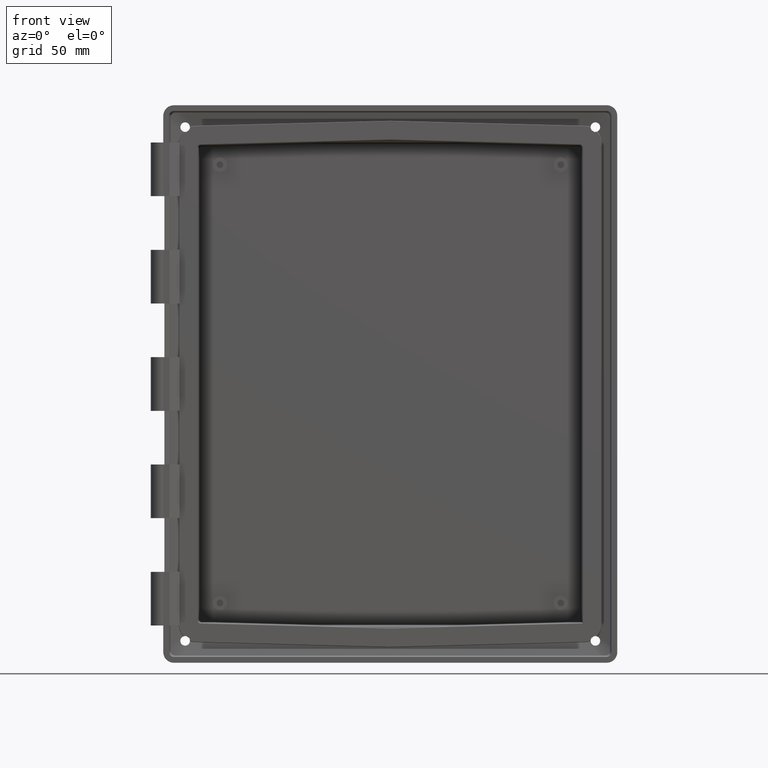
[diagram: clean part render]
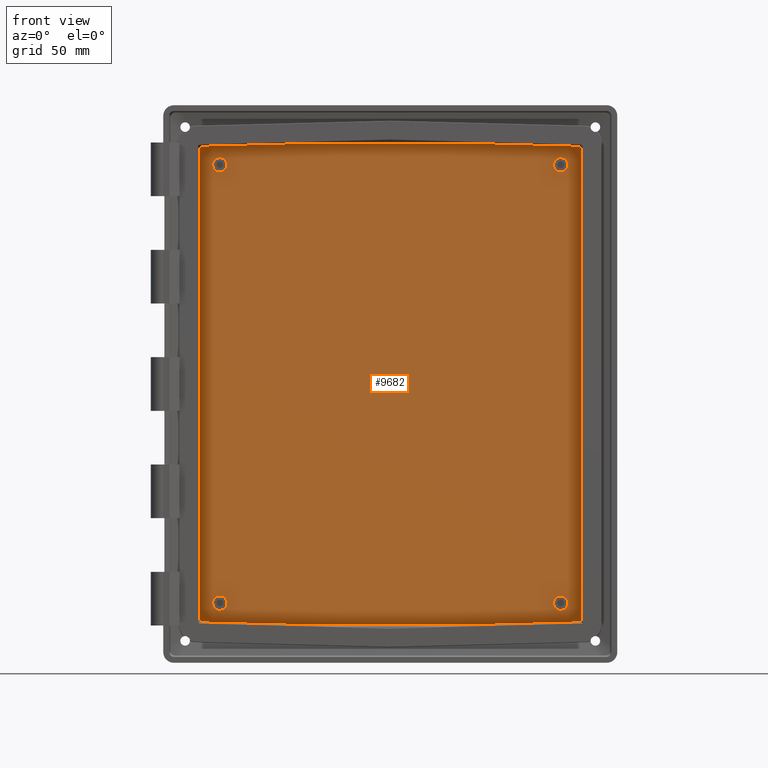
[diagram: same view with one face highlighted and labeled with its STEP entity id]
A machine part, front view. The second image highlights one B-rep face of the part: STEP entity #9682.
In plain terms, the highlighted planar face has unit normal (0, 1, 0).
Its self-contained STEP definition (entity closure, byte-faithful):
#358 = ORIENTED_EDGE ( 'NONE', *, *, #359, .T. ) ;
#359 = EDGE_CURVE ( 'NONE', #385, #360, #3571, .T. ) ;
#360 = VERTEX_POINT ( 'NONE', #3567 ) ;
#361 = ORIENTED_EDGE ( 'NONE', *, *, #362, .T. ) ;
#362 = EDGE_CURVE ( 'NONE', #360, #363, #3566, .T. ) ;
#363 = VERTEX_POINT ( 'NONE', #3562 ) ;
#364 = ORIENTED_EDGE ( 'NONE', *, *, #365, .T. ) ;
#365 = EDGE_CURVE ( 'NONE', #363, #391, #3624, .T. ) ;
#366 = EDGE_LOOP ( 'NONE', ( #367, #369 ) ) ;
#367 = ORIENTED_EDGE ( 'NONE', *, *, #368, .F. ) ;
#368 = EDGE_CURVE ( 'NONE', #9699, #495, #3619, .T. ) ;
#369 = ORIENTED_EDGE ( 'NONE', *, *, #497, .F. ) ;
#370 = EDGE_LOOP ( 'NONE', ( #428, #430 ) ) ;
#371 = EDGE_CURVE ( 'NONE', #398, #372, #3614, .T. ) ;
#372 = VERTEX_POINT ( 'NONE', #3610 ) ;
#373 = ORIENTED_EDGE ( 'NONE', *, *, #374, .T. ) ;
#374 = EDGE_CURVE ( 'NONE', #372, #375, #3609, .T. ) ;
#375 = VERTEX_POINT ( 'NONE', #3605 ) ;
#376 = ORIENTED_EDGE ( 'NONE', *, *, #377, .F. ) ;
#377 = EDGE_CURVE ( 'NONE', #378, #375, #3641, .T. ) ;
#378 = VERTEX_POINT ( 'NONE', #3604 ) ;
#379 = ORIENTED_EDGE ( 'NONE', *, *, #380, .T. ) ;
#380 = EDGE_CURVE ( 'NONE', #378, #381, #3603, .T. ) ;
#381 = VERTEX_POINT ( 'NONE', #3633 ) ;
#382 = ORIENTED_EDGE ( 'NONE', *, *, #383, .T. ) ;
#383 = EDGE_CURVE ( 'NONE', #381, #384, #3631, .T. ) ;
#384 = VERTEX_POINT ( 'NONE', #3630 ) ;
#385 = VERTEX_POINT ( 'NONE', #3632 ) ;
#386 = EDGE_CURVE ( 'NONE', #9710, #9705, #3662, .T. ) ;
#387 = ORIENTED_EDGE ( 'NONE', *, *, #9706, .F. ) ;
#388 = EDGE_LOOP ( 'NONE', ( #389, #393, #396, #399, #373, #376, #379, #382, #441, #358, #361, #364 ) ) ;
#389 = ORIENTED_EDGE ( 'NONE', *, *, #390, .T. ) ;
#390 = EDGE_CURVE ( 'NONE', #391, #392, #3663, .T. ) ;
#391 = VERTEX_POINT ( 'NONE', #3654 ) ;
#392 = VERTEX_POINT ( 'NONE', #3653 ) ;
#393 = ORIENTED_EDGE ( 'NONE', *, *, #394, .T. ) ;
#394 = EDGE_CURVE ( 'NONE', #392, #395, #3650, .T. ) ;
#395 = VERTEX_POINT ( 'NONE', #3652 ) ;
#396 = ORIENTED_EDGE ( 'NONE', *, *, #397, .T. ) ;
#397 = EDGE_CURVE ( 'NONE', #395, #398, #3651, .T. ) ;
#398 = VERTEX_POINT ( 'NONE', #3642 ) ;
#399 = ORIENTED_EDGE ( 'NONE', *, *, #371, .T. ) ;
#428 = ORIENTED_EDGE ( 'NONE', *, *, #429, .F. ) ;
#429 = EDGE_CURVE ( 'NONE', #501, #528, #3798, .T. ) ;
#430 = ORIENTED_EDGE ( 'NONE', *, *, #500, .F. ) ;
#441 = ORIENTED_EDGE ( 'NONE', *, *, #442, .T. ) ;
#442 = EDGE_CURVE ( 'NONE', #384, #385, #3951, .T. ) ;
#495 = VERTEX_POINT ( 'NONE', #4022 ) ;
#497 = EDGE_CURVE ( 'NONE', #495, #9699, #4075, .T. ) ;
#500 = EDGE_CURVE ( 'NONE', #528, #501, #4067, .T. ) ;
#501 = VERTEX_POINT ( 'NONE', #4062 ) ;
#528 = VERTEX_POINT ( 'NONE', #4139 ) ;
#529 = VERTEX_POINT ( 'NONE', #4138 ) ;
#531 = EDGE_CURVE ( 'NONE', #529, #532, #4137, .T. ) ;
#532 = VERTEX_POINT ( 'NONE', #4132 ) ;
#3562 = CARTESIAN_POINT ( 'NONE',  ( -98.03662246108612500, 30.60000000000000100, 123.9972671691286900 ) ) ;
#3563 = DIRECTION ( 'NONE',  ( -0.9996573249755572600, -0.0000000000000000000, -0.02617694830787319800 ) ) ;
#3564 = VECTOR ( 'NONE', #3563, 1000.000000000000100 ) ;
#3565 = CARTESIAN_POINT ( 'NONE',  ( -100.5370706981924700, 30.60000000000000100, 123.9317906277040200 ) ) ;
#3566 = LINE ( 'NONE', #3565, #3564 ) ;
#3567 = CARTESIAN_POINT ( 'NONE',  ( -40.96821627691110700, 30.60000000000000100, 125.4916559775460000 ) ) ;
#3568 = DIRECTION ( 'NONE',  ( -1.000000000000000000, -0.0000000000000000000, -0.0000000000000000000 ) ) ;
#3569 = VECTOR ( 'NONE', #3568, 1000.000000000000000 ) ;
#3570 = CARTESIAN_POINT ( 'NONE',  ( -104.5000000000000100, 30.60000000000000100, 125.4916559775460000 ) ) ;
#3571 = LINE ( 'NONE', #3570, #3569 ) ;
#3603 = LINE ( 'NONE', #3636, #3635 ) ;
#3604 = CARTESIAN_POINT ( 'NONE',  ( 99.49165597754603100, 30.60000000000000100, -123.3945339545613800 ) ) ;
#3605 = CARTESIAN_POINT ( 'NONE',  ( 99.41380563708224800, 30.60000000000000100, -123.9612043584956500 ) ) ;
#3606 = DIRECTION ( 'NONE',  ( 0.9996573249755572600, -0.0000000000000000000, 0.02617694830787319400 ) ) ;
#3607 = VECTOR ( 'NONE', #3606, 1000.000000000000100 ) ;
#3608 = CARTESIAN_POINT ( 'NONE',  ( -0.02797204684241310800, 30.60000000000000100, -126.5651789496274400 ) ) ;
#3609 = LINE ( 'NONE', #3608, #3607 ) ;
#3610 = CARTESIAN_POINT ( 'NONE',  ( 40.96821627691107900, 30.60000000000000100, -125.4916559775459200 ) ) ;
#3611 = DIRECTION ( 'NONE',  ( 1.000000000000000000, -0.0000000000000000000, -0.0000000000000000000 ) ) ;
#3612 = VECTOR ( 'NONE', #3611, 1000.000000000000000 ) ;
#3613 = CARTESIAN_POINT ( 'NONE',  ( -104.5000000000000100, 30.60000000000000100, -125.4916559775459200 ) ) ;
#3614 = LINE ( 'NONE', #3613, #3612 ) ;
#3615 = DIRECTION ( 'NONE',  ( 0.0000000000000000000, 0.0000000000000000000, 1.000000000000000000 ) ) ;
#3616 = DIRECTION ( 'NONE',  ( -0.0000000000000000000, -1.000000000000000000, -0.0000000000000000000 ) ) ;
#3617 = CARTESIAN_POINT ( 'NONE',  ( 88.89999999999996300, 30.60000000000000100, -114.3000000000000000 ) ) ;
#3618 = AXIS2_PLACEMENT_3D ( 'NONE', #3617, #3616, #3615 ) ;
#3619 = CIRCLE ( 'NONE', #3618, 3.750000000000003600 ) ;
#3620 = CARTESIAN_POINT ( 'NONE',  ( -99.49165597754601700, 30.60000000000000100, 122.6187655489183000 ) ) ;
#3621 = CARTESIAN_POINT ( 'NONE',  ( -99.42716768543260700, 30.60000000000000500, 123.4221343239195100 ) ) ;
#3622 = CARTESIAN_POINT ( 'NONE',  ( -98.84237529300413900, 30.60000000000000500, 123.9761677886679200 ) ) ;
#3623 = CARTESIAN_POINT ( 'NONE',  ( -98.03662246108612500, 30.60000000000000100, 123.9972671691286900 ) ) ;
#3624 =( BOUNDED_CURVE ( )  B_SPLINE_CURVE ( 3, ( #3623, #3622, #3621, #3620 ),
 .UNSPECIFIED., .F., .T. ) 
 B_SPLINE_CURVE_WITH_KNOTS ( ( 4, 4 ),
 ( 5.511470371821744200, 6.974809783478868000 ),
 .UNSPECIFIED. ) 
 CURVE ( )  GEOMETRIC_REPRESENTATION_ITEM ( )  RATIONAL_B_SPLINE_CURVE ( ( 1.000000000000000000, 0.8293732586690909500, 0.8293732586690909500, 1.000000000000000000 ) ) 
 REPRESENTATION_ITEM ( '' )  );
#3625 = CARTESIAN_POINT ( 'NONE',  ( 98.03662246108611100, 30.60000000000000100, 123.9972671691286900 ) ) ;
#3626 = CARTESIAN_POINT ( 'NONE',  ( 98.84237529300436600, 30.60000000000000100, 123.9761677886679400 ) ) ;
#3627 = CARTESIAN_POINT ( 'NONE',  ( 99.42716768543292000, 30.60000000000000100, 123.4221343239192400 ) ) ;
#3628 = CARTESIAN_POINT ( 'NONE',  ( 99.49165597754606000, 30.60000000000000100, 122.6187655489178100 ) ) ;
#3630 = CARTESIAN_POINT ( 'NONE',  ( 98.03662246108611100, 30.60000000000000100, 123.9972671691286900 ) ) ;
#3631 =( BOUNDED_CURVE ( )  B_SPLINE_CURVE ( 3, ( #3628, #3627, #3626, #3625 ),
 .UNSPECIFIED., .F., .T. ) 
 B_SPLINE_CURVE_WITH_KNOTS ( ( 4, 4 ),
 ( 5.591560830879970500, 7.054900242537447000 ),
 .UNSPECIFIED. ) 
 CURVE ( )  GEOMETRIC_REPRESENTATION_ITEM ( )  RATIONAL_B_SPLINE_CURVE ( ( 1.000000000000000000, 0.8293732586690124600, 0.8293732586690124600, 1.000000000000000000 ) ) 
 REPRESENTATION_ITEM ( '' )  );
#3632 = CARTESIAN_POINT ( 'NONE',  ( 40.96821627691107900, 30.60000000000000100, 125.4916559775460000 ) ) ;
#3633 = CARTESIAN_POINT ( 'NONE',  ( 99.49165597754606000, 30.60000000000000100, 122.6187655489178100 ) ) ;
#3634 = DIRECTION ( 'NONE',  ( 1.063432015924479500E-016, -0.0000000000000000000, 1.000000000000000000 ) ) ;
#3635 = VECTOR ( 'NONE', #3634, 1000.000000000000000 ) ;
#3636 = CARTESIAN_POINT ( 'NONE',  ( 99.49165597754606000, 30.60000000000000100, 130.4999999999999700 ) ) ;
#3637 = CARTESIAN_POINT ( 'NONE',  ( 99.41380563708224800, 30.60000000000000100, -123.9612043584956500 ) ) ;
#3638 = CARTESIAN_POINT ( 'NONE',  ( 99.46554399716752900, 30.60000000000000100, -123.7765267905571800 ) ) ;
#3639 = CARTESIAN_POINT ( 'NONE',  ( 99.49165597754604600, 30.60000000000000100, -123.5864584314407300 ) ) ;
#3640 = CARTESIAN_POINT ( 'NONE',  ( 99.49165597754603100, 30.60000000000000100, -123.3945339545613800 ) ) ;
#3641 =( BOUNDED_CURVE ( )  B_SPLINE_CURVE ( 3, ( #3640, #3639, #3638, #3637 ),
 .UNSPECIFIED., .F., .T. ) 
 B_SPLINE_CURVE_WITH_KNOTS ( ( 4, 4 ),
 ( 5.499156671652511500, 5.772109014360043300 ),
 .UNSPECIFIED. ) 
 CURVE ( )  GEOMETRIC_REPRESENTATION_ITEM ( )  RATIONAL_B_SPLINE_CURVE ( ( 1.000000000000000000, 0.9938010488584905200, 0.9938010488584905200, 1.000000000000000000 ) ) 
 REPRESENTATION_ITEM ( '' )  );
#3642 = CARTESIAN_POINT ( 'NONE',  ( -40.96821627691110700, 30.60000000000000100, -125.4916559775459200 ) ) ;
#3643 = DIRECTION ( 'NONE',  ( 0.9996573249755572600, -0.0000000000000000000, -0.02617694830787319800 ) ) ;
#3644 = VECTOR ( 'NONE', #3643, 1000.000000000000100 ) ;
#3645 = CARTESIAN_POINT ( 'NONE',  ( -100.5370706981924700, 30.60000000000000100, -123.9317906277040200 ) ) ;
#3646 = CARTESIAN_POINT ( 'NONE',  ( -98.03662246108612500, 30.60000000000000100, -123.9972671691286900 ) ) ;
#3647 = CARTESIAN_POINT ( 'NONE',  ( -98.84237529300428100, 30.59999999999999800, -123.9761677886679100 ) ) ;
#3648 = CARTESIAN_POINT ( 'NONE',  ( -99.42716768543277800, 30.59999999999999800, -123.4221343239193200 ) ) ;
#3649 = CARTESIAN_POINT ( 'NONE',  ( -99.49165597754604600, 30.60000000000000100, -122.6187655489179900 ) ) ;
#3650 =( BOUNDED_CURVE ( )  B_SPLINE_CURVE ( 3, ( #3649, #3648, #3647, #3646 ),
 .UNSPECIFIED., .F., .T. ) 
 B_SPLINE_CURVE_WITH_KNOTS ( ( 4, 4 ),
 ( 2.449968177290298100, 3.913307588947635200 ),
 .UNSPECIFIED. ) 
 CURVE ( )  GEOMETRIC_REPRESENTATION_ITEM ( )  RATIONAL_B_SPLINE_CURVE ( ( 1.000000000000000000, 0.8293732586690434300, 0.8293732586690434300, 1.000000000000000000 ) ) 
 REPRESENTATION_ITEM ( '' )  );
#3651 = LINE ( 'NONE', #3645, #3644 ) ;
#3652 = CARTESIAN_POINT ( 'NONE',  ( -98.03662246108612500, 30.60000000000000100, -123.9972671691286900 ) ) ;
#3653 = CARTESIAN_POINT ( 'NONE',  ( -99.49165597754604600, 30.60000000000000100, -122.6187655489179900 ) ) ;
#3654 = CARTESIAN_POINT ( 'NONE',  ( -99.49165597754601700, 30.60000000000000100, 122.6187655489183000 ) ) ;
#3655 = DIRECTION ( 'NONE',  ( -1.063432015924479500E-016, 0.0000000000000000000, -1.000000000000000000 ) ) ;
#3656 = VECTOR ( 'NONE', #3655, 1000.000000000000000 ) ;
#3657 = CARTESIAN_POINT ( 'NONE',  ( -99.49165597754601700, 30.60000000000000100, 130.5000000000000000 ) ) ;
#3658 = DIRECTION ( 'NONE',  ( 0.0000000000000000000, 0.0000000000000000000, 1.000000000000000000 ) ) ;
#3659 = DIRECTION ( 'NONE',  ( -0.0000000000000000000, -1.000000000000000000, -0.0000000000000000000 ) ) ;
#3660 = CARTESIAN_POINT ( 'NONE',  ( 88.89999999999996300, 30.60000000000000100, 114.3000000000000000 ) ) ;
#3661 = AXIS2_PLACEMENT_3D ( 'NONE', #3660, #3659, #3658 ) ;
#3662 = CIRCLE ( 'NONE', #3661, 3.750000000000003600 ) ;
#3663 = LINE ( 'NONE', #3657, #3656 ) ;
#3798 = CIRCLE ( 'NONE', #3835, 3.750000000000003600 ) ;
#3832 = DIRECTION ( 'NONE',  ( 0.0000000000000000000, 0.0000000000000000000, 1.000000000000000000 ) ) ;
#3833 = DIRECTION ( 'NONE',  ( -0.0000000000000000000, -1.000000000000000000, -0.0000000000000000000 ) ) ;
#3834 = CARTESIAN_POINT ( 'NONE',  ( -88.90000000000004800, 30.60000000000000100, 114.2999999999999400 ) ) ;
#3835 = AXIS2_PLACEMENT_3D ( 'NONE', #3834, #3833, #3832 ) ;
#3948 = DIRECTION ( 'NONE',  ( -0.9996573249755572600, -0.0000000000000000000, 0.02617694830787319400 ) ) ;
#3949 = VECTOR ( 'NONE', #3948, 1000.000000000000100 ) ;
#3950 = CARTESIAN_POINT ( 'NONE',  ( -0.02797204684241310800, 30.60000000000000100, 126.5651789496274400 ) ) ;
#3951 = LINE ( 'NONE', #3950, #3949 ) ;
#4022 = CARTESIAN_POINT ( 'NONE',  ( 88.89999999999996300, 30.60000000000000100, -118.0500000000000000 ) ) ;
#4062 = CARTESIAN_POINT ( 'NONE',  ( -88.90000000000004800, 30.60000000000000100, 118.0499999999999400 ) ) ;
#4063 = DIRECTION ( 'NONE',  ( 0.0000000000000000000, 0.0000000000000000000, 1.000000000000000000 ) ) ;
#4064 = DIRECTION ( 'NONE',  ( -0.0000000000000000000, -1.000000000000000000, -0.0000000000000000000 ) ) ;
#4065 = CARTESIAN_POINT ( 'NONE',  ( -88.90000000000004800, 30.60000000000000100, 114.2999999999999400 ) ) ;
#4066 = AXIS2_PLACEMENT_3D ( 'NONE', #4065, #4064, #4063 ) ;
#4067 = CIRCLE ( 'NONE', #4066, 3.750000000000003600 ) ;
#4071 = DIRECTION ( 'NONE',  ( 0.0000000000000000000, 0.0000000000000000000, 1.000000000000000000 ) ) ;
#4072 = DIRECTION ( 'NONE',  ( -0.0000000000000000000, -1.000000000000000000, -0.0000000000000000000 ) ) ;
#4073 = CARTESIAN_POINT ( 'NONE',  ( 88.89999999999996300, 30.60000000000000100, -114.3000000000000000 ) ) ;
#4074 = AXIS2_PLACEMENT_3D ( 'NONE', #4073, #4072, #4071 ) ;
#4075 = CIRCLE ( 'NONE', #4074, 3.750000000000003600 ) ;
#4132 = CARTESIAN_POINT ( 'NONE',  ( -88.89999999999993500, 30.60000000000000100, -110.5500000000000300 ) ) ;
#4133 = DIRECTION ( 'NONE',  ( 0.0000000000000000000, 0.0000000000000000000, 1.000000000000000000 ) ) ;
#4134 = DIRECTION ( 'NONE',  ( -0.0000000000000000000, -1.000000000000000000, -0.0000000000000000000 ) ) ;
#4135 = CARTESIAN_POINT ( 'NONE',  ( -88.89999999999993500, 30.60000000000000100, -114.3000000000000300 ) ) ;
#4136 = AXIS2_PLACEMENT_3D ( 'NONE', #4135, #4134, #4133 ) ;
#4137 = CIRCLE ( 'NONE', #4136, 3.750000000000003600 ) ;
#4138 = CARTESIAN_POINT ( 'NONE',  ( -88.89999999999993500, 30.60000000000000100, -118.0500000000000300 ) ) ;
#4139 = CARTESIAN_POINT ( 'NONE',  ( -88.90000000000004800, 30.60000000000000100, 110.5499999999999400 ) ) ;
#9469 = FACE_BOUND ( 'NONE', #9686, .T. ) ;
#9470 = FACE_BOUND ( 'NONE', #9688, .T. ) ;
#9497 = CARTESIAN_POINT ( 'NONE',  ( 88.89999999999996300, 30.60000000000000100, -110.5500000000000000 ) ) ;
#9502 = DIRECTION ( 'NONE',  ( 0.0000000000000000000, 0.0000000000000000000, 1.000000000000000000 ) ) ;
#9503 = DIRECTION ( 'NONE',  ( -0.0000000000000000000, -1.000000000000000000, -0.0000000000000000000 ) ) ;
#9504 = CARTESIAN_POINT ( 'NONE',  ( -88.89999999999993500, 30.60000000000000100, -114.3000000000000300 ) ) ;
#9505 = AXIS2_PLACEMENT_3D ( 'NONE', #9504, #9503, #9502 ) ;
#9506 = CIRCLE ( 'NONE', #9505, 3.750000000000003600 ) ;
#9511 = DIRECTION ( 'NONE',  ( 0.0000000000000000000, -0.0000000000000000000, 1.000000000000000000 ) ) ;
#9512 = DIRECTION ( 'NONE',  ( 0.0000000000000000000, 1.000000000000000000, 0.0000000000000000000 ) ) ;
#9513 = CARTESIAN_POINT ( 'NONE',  ( -104.5000000000000100, 30.60000000000000100, 130.5000000000000000 ) ) ;
#9515 = AXIS2_PLACEMENT_3D ( 'NONE', #9513, #9512, #9511 ) ;
#9516 = PLANE ( 'NONE',  #9515 ) ;
#9517 = FACE_BOUND ( 'NONE', #370, .T. ) ;
#9518 = FACE_BOUND ( 'NONE', #366, .T. ) ;
#9519 = FACE_OUTER_BOUND ( 'NONE', #388, .T. ) ;
#9538 = CARTESIAN_POINT ( 'NONE',  ( 88.89999999999996300, 30.60000000000000100, 118.0500000000000000 ) ) ;
#9542 = DIRECTION ( 'NONE',  ( 0.0000000000000000000, 0.0000000000000000000, 1.000000000000000000 ) ) ;
#9543 = DIRECTION ( 'NONE',  ( -0.0000000000000000000, -1.000000000000000000, -0.0000000000000000000 ) ) ;
#9544 = CARTESIAN_POINT ( 'NONE',  ( 88.89999999999996300, 30.60000000000000100, 114.3000000000000000 ) ) ;
#9545 = AXIS2_PLACEMENT_3D ( 'NONE', #9544, #9543, #9542 ) ;
#9546 = CIRCLE ( 'NONE', #9545, 3.750000000000003600 ) ;
#9547 = CARTESIAN_POINT ( 'NONE',  ( 88.89999999999996300, 30.60000000000000100, 110.5500000000000000 ) ) ;
#9682 = ADVANCED_FACE ( 'NONE', ( #9470, #9469, #9519, #9518, #9517 ), #9516, .F. ) ;
#9683 = ORIENTED_EDGE ( 'NONE', *, *, #9691, .F. ) ;
#9686 = EDGE_LOOP ( 'NONE', ( #9687, #387 ) ) ;
#9687 = ORIENTED_EDGE ( 'NONE', *, *, #386, .F. ) ;
#9688 = EDGE_LOOP ( 'NONE', ( #9683, #9690 ) ) ;
#9690 = ORIENTED_EDGE ( 'NONE', *, *, #531, .F. ) ;
#9691 = EDGE_CURVE ( 'NONE', #532, #529, #9506, .T. ) ;
#9699 = VERTEX_POINT ( 'NONE', #9497 ) ;
#9705 = VERTEX_POINT ( 'NONE', #9547 ) ;
#9706 = EDGE_CURVE ( 'NONE', #9705, #9710, #9546, .T. ) ;
#9710 = VERTEX_POINT ( 'NONE', #9538 ) ;